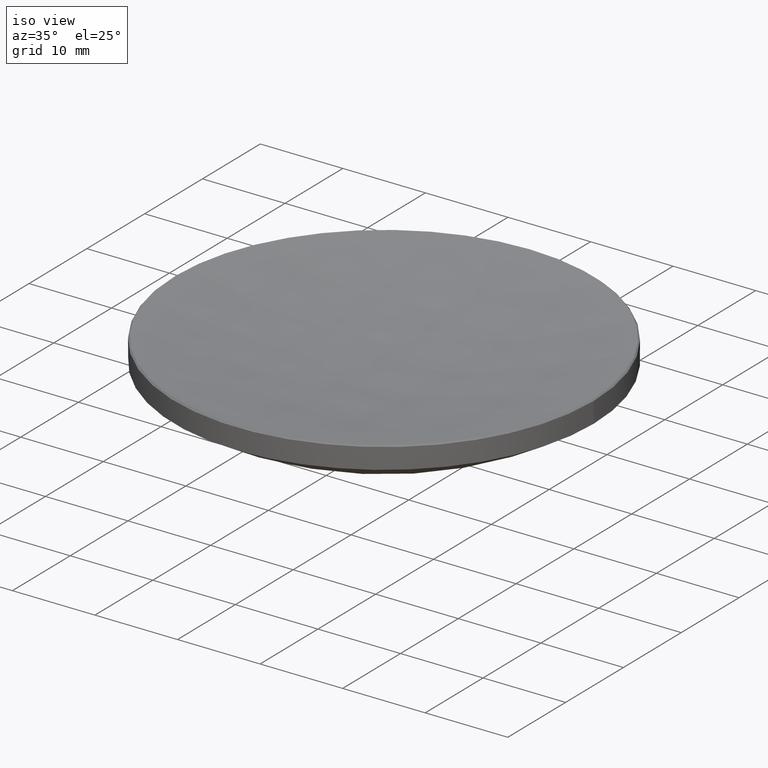
[diagram: clean part render]
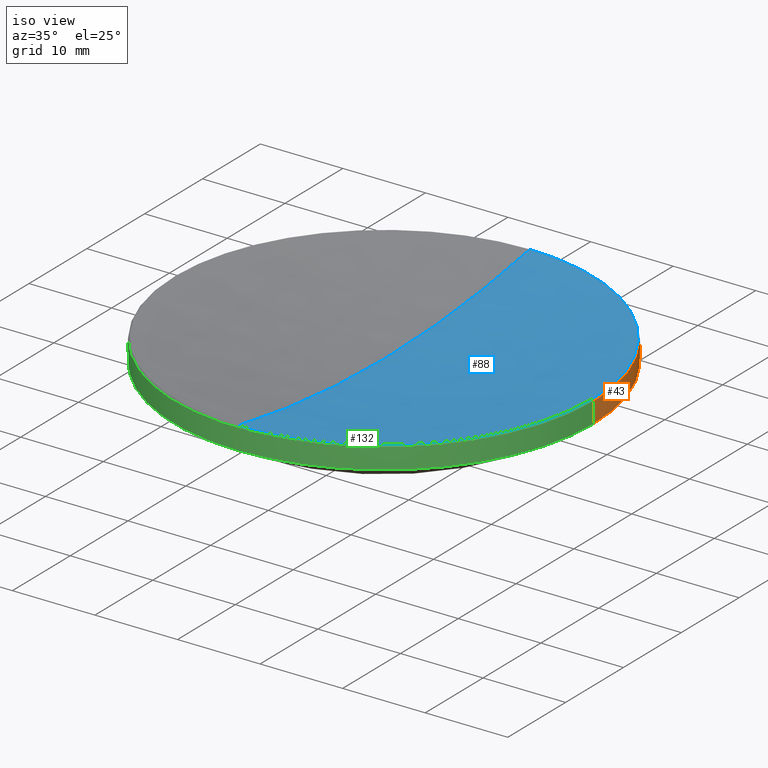
[diagram: same view with three faces highlighted in distinct colors, each labeled with its STEP entity id]
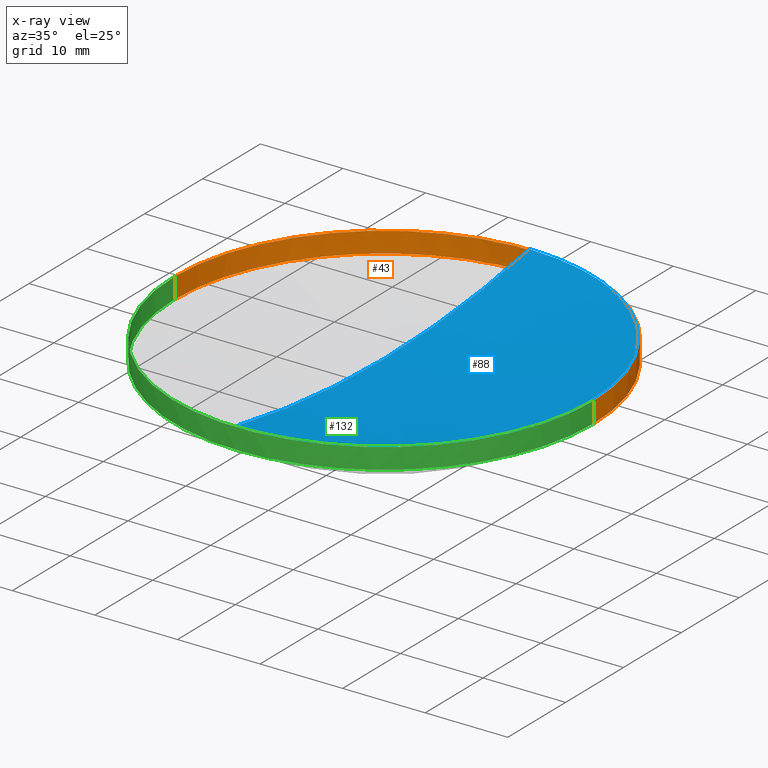
[diagram: x-ray of the same camera — body ghosted, the three highlighted faces saturated]
A machine part, iso view with three faces highlighted in distinct colors.
The next image is the same camera in x-ray (body ghosted, the three faces saturated) — at least one of them is partly hidden behind the body in this view.
Their STEP definitions:

[orange] entity #43 — the highlighted cylindrical surface (partial cylindrical patch) has radius 25.4 mm, axis along (-0, -0, -1).
#6 = VECTOR ( 'NONE', #245, 1000.000000000000000 ) ;
#9 = ORIENTED_EDGE ( 'NONE', *, *, #92, .F. ) ;
#16 = CIRCLE ( 'NONE', #257, 25.39999999999999503 ) ;
#20 = EDGE_CURVE ( 'NONE', #118, #208, #87, .T. ) ;
#25 = EDGE_CURVE ( 'NONE', #208, #144, #16, .T. ) ;
#36 = EDGE_CURVE ( 'NONE', #144, #116, #131, .T. ) ;
#39 = EDGE_LOOP ( 'NONE', ( #178, #81, #211, #54, #9 ) ) ;
#40 = CARTESIAN_POINT ( 'NONE',  ( 25.39999999999999503, 3.110602869834276471E-15, 15.00000000000000000 ) ) ;
#43 = ADVANCED_FACE ( 'NONE', ( #46 ), #127, .T. ) ;
#44 = DIRECTION ( 'NONE',  ( 1.000000000000000000, 0.000000000000000000, 0.000000000000000000 ) ) ;
#46 = FACE_OUTER_BOUND ( 'NONE', #39, .T. ) ;
#49 = CARTESIAN_POINT ( 'NONE',  ( 0.000000000000000000, 0.000000000000000000, 17.49999999999998934 ) ) ;
#50 = CARTESIAN_POINT ( 'NONE',  ( -25.39999999999999858, 0.000000000000000000, 20.00000000000000000 ) ) ;
#54 = ORIENTED_EDGE ( 'NONE', *, *, #36, .T. ) ;
#67 = DIRECTION ( 'NONE',  ( -1.000000000000000000, 0.000000000000000000, 0.000000000000000000 ) ) ;
#81 = ORIENTED_EDGE ( 'NONE', *, *, #20, .T. ) ;
#87 = LINE ( 'NONE', #212, #138 ) ;
#89 = AXIS2_PLACEMENT_3D ( 'NONE', #107, #259, #67 ) ;
#91 = DIRECTION ( 'NONE',  ( -0.000000000000000000, -0.000000000000000000, 1.000000000000000000 ) ) ;
#92 = EDGE_CURVE ( 'NONE', #202, #116, #220, .T. ) ;
#94 = AXIS2_PLACEMENT_3D ( 'NONE', #49, #129, #221 ) ;
#95 = CARTESIAN_POINT ( 'NONE',  ( 25.39999999999999858, 3.110602869834276865E-15, 17.49999999999998934 ) ) ;
#96 = CARTESIAN_POINT ( 'NONE',  ( 0.000000000000000000, 25.39999999999999858, 15.00000000000000000 ) ) ;
#107 = CARTESIAN_POINT ( 'NONE',  ( 0.000000000000000000, 0.000000000000000000, 20.00000000000000000 ) ) ;
#110 = CARTESIAN_POINT ( 'NONE',  ( -25.39999999999999503, 0.000000000000000000, 15.00000000000000000 ) ) ;
#116 = VERTEX_POINT ( 'NONE', #110 ) ;
#118 = VERTEX_POINT ( 'NONE', #95 ) ;
#126 = CARTESIAN_POINT ( 'NONE',  ( 0.000000000000000000, 0.000000000000000000, 15.00000000000000000 ) ) ;
#127 = CYLINDRICAL_SURFACE ( 'NONE', #89, 25.39999999999999858 ) ;
#129 = DIRECTION ( 'NONE',  ( 0.000000000000000000, 0.000000000000000000, -1.000000000000000000 ) ) ;
#131 = CIRCLE ( 'NONE', #170, 25.39999999999999503 ) ;
#138 = VECTOR ( 'NONE', #238, 1000.000000000000000 ) ;
#144 = VERTEX_POINT ( 'NONE', #96 ) ;
#159 = CARTESIAN_POINT ( 'NONE',  ( -25.39999999999999858, 0.000000000000000000, 17.49999999999998934 ) ) ;
#167 = DIRECTION ( 'NONE',  ( -0.000000000000000000, -0.000000000000000000, 1.000000000000000000 ) ) ;
#169 = DIRECTION ( 'NONE',  ( 1.000000000000000000, 0.000000000000000000, 0.000000000000000000 ) ) ;
#170 = AXIS2_PLACEMENT_3D ( 'NONE', #240, #167, #44 ) ;
#172 = EDGE_CURVE ( 'NONE', #202, #118, #182, .T. ) ;
#178 = ORIENTED_EDGE ( 'NONE', *, *, #172, .T. ) ;
#182 = CIRCLE ( 'NONE', #94, 25.39999999999999858 ) ;
#202 = VERTEX_POINT ( 'NONE', #159 ) ;
#208 = VERTEX_POINT ( 'NONE', #40 ) ;
#211 = ORIENTED_EDGE ( 'NONE', *, *, #25, .T. ) ;
#212 = CARTESIAN_POINT ( 'NONE',  ( 25.39999999999999858, 3.110602869834276865E-15, 20.00000000000000000 ) ) ;
#220 = LINE ( 'NONE', #50, #6 ) ;
#221 = DIRECTION ( 'NONE',  ( 1.000000000000000000, 0.000000000000000000, 0.000000000000000000 ) ) ;
#238 = DIRECTION ( 'NONE',  ( -0.000000000000000000, -0.000000000000000000, -1.000000000000000000 ) ) ;
#240 = CARTESIAN_POINT ( 'NONE',  ( 0.000000000000000000, 0.000000000000000000, 15.00000000000000000 ) ) ;
#245 = DIRECTION ( 'NONE',  ( -0.000000000000000000, -0.000000000000000000, -1.000000000000000000 ) ) ;
#257 = AXIS2_PLACEMENT_3D ( 'NONE', #126, #91, #169 ) ;
#259 = DIRECTION ( 'NONE',  ( -0.000000000000000000, -0.000000000000000000, -1.000000000000000000 ) ) ;

[blue] entity #88 — the highlighted spherical surface has radius 135.25 mm.
#2 = EDGE_CURVE ( 'NONE', #258, #99, #243, .T. ) ;
#10 = CIRCLE ( 'NONE', #280, 25.23201001315934988 ) ;
#19 = DIRECTION ( 'NONE',  ( 1.000000000000000000, 0.000000000000000000, 0.000000000000000000 ) ) ;
#21 = AXIS2_PLACEMENT_3D ( 'NONE', #53, #78, #98 ) ;
#24 = CARTESIAN_POINT ( 'NONE',  ( 0.000000000000000000, 0.000000000000000000, 17.66798998684060251 ) ) ;
#29 = CIRCLE ( 'NONE', #112, 25.23201001315934988 ) ;
#48 = SPHERICAL_SURFACE ( 'NONE', #217, 135.2499999999999716 ) ;
#53 = CARTESIAN_POINT ( 'NONE',  ( 0.000000000000000000, 0.000000000000000000, 150.5435263759585780 ) ) ;
#58 = CARTESIAN_POINT ( 'NONE',  ( 0.000000000000000000, 0.000000000000000000, 150.5435263759585780 ) ) ;
#63 = EDGE_CURVE ( 'NONE', #147, #137, #29, .T. ) ;
#64 = ORIENTED_EDGE ( 'NONE', *, *, #63, .T. ) ;
#78 = DIRECTION ( 'NONE',  ( -1.000000000000000000, 1.224646799147353207E-16, 0.000000000000000000 ) ) ;
#82 = CARTESIAN_POINT ( 'NONE',  ( 0.000000000000000000, 8.281673979233975438E-15, 15.29352637595859932 ) ) ;
#86 = ORIENTED_EDGE ( 'NONE', *, *, #204, .T. ) ;
#88 = ADVANCED_FACE ( 'NONE', ( #192 ), #48, .F. ) ;
#98 = DIRECTION ( 'NONE',  ( -1.224646799147353454E-16, -1.000000000000000000, 0.000000000000000000 ) ) ;
#99 = VERTEX_POINT ( 'NONE', #196 ) ;
#108 = DIRECTION ( 'NONE',  ( -0.000000000000000000, -0.000000000000000000, 1.000000000000000000 ) ) ;
#112 = AXIS2_PLACEMENT_3D ( 'NONE', #216, #108, #124 ) ;
#124 = DIRECTION ( 'NONE',  ( 1.000000000000000000, 0.000000000000000000, 0.000000000000000000 ) ) ;
#130 = CARTESIAN_POINT ( 'NONE',  ( 25.23201001315934988, 3.100316449850616276E-15, 17.66798998684060251 ) ) ;
#137 = VERTEX_POINT ( 'NONE', #130 ) ;
#147 = VERTEX_POINT ( 'NONE', #270 ) ;
#151 = AXIS2_PLACEMENT_3D ( 'NONE', #58, #19, #189 ) ;
#153 = CIRCLE ( 'NONE', #21, 135.2499999999999716 ) ;
#171 = DIRECTION ( 'NONE',  ( 0.000000000000000000, 1.000000000000000000, 0.000000000000000000 ) ) ;
#183 = EDGE_CURVE ( 'NONE', #137, #99, #10, .T. ) ;
#189 = DIRECTION ( 'NONE',  ( 0.000000000000000000, 0.000000000000000000, -1.000000000000000000 ) ) ;
#192 = FACE_OUTER_BOUND ( 'NONE', #249, .T. ) ;
#193 = DIRECTION ( 'NONE',  ( -1.000000000000000000, 0.000000000000000000, 0.000000000000000000 ) ) ;
#196 = CARTESIAN_POINT ( 'NONE',  ( 0.000000000000000000, 25.23201001315939607, 17.66798998684061672 ) ) ;
#204 = EDGE_CURVE ( 'NONE', #258, #147, #153, .T. ) ;
#207 = DIRECTION ( 'NONE',  ( -0.000000000000000000, -0.000000000000000000, 1.000000000000000000 ) ) ;
#216 = CARTESIAN_POINT ( 'NONE',  ( 0.000000000000000000, 0.000000000000000000, 17.66798998684060251 ) ) ;
#217 = AXIS2_PLACEMENT_3D ( 'NONE', #246, #193, #171 ) ;
#229 = ORIENTED_EDGE ( 'NONE', *, *, #183, .T. ) ;
#243 = CIRCLE ( 'NONE', #151, 135.2499999999999716 ) ;
#246 = CARTESIAN_POINT ( 'NONE',  ( 0.000000000000000000, 0.000000000000000000, 150.5435263759585780 ) ) ;
#249 = EDGE_LOOP ( 'NONE', ( #253, #86, #64, #229 ) ) ;
#253 = ORIENTED_EDGE ( 'NONE', *, *, #2, .F. ) ;
#258 = VERTEX_POINT ( 'NONE', #82 ) ;
#270 = CARTESIAN_POINT ( 'NONE',  ( -3.090030029866962391E-15, -25.23201001315939607, 17.66798998684061672 ) ) ;
#277 = DIRECTION ( 'NONE',  ( 1.000000000000000000, 0.000000000000000000, 0.000000000000000000 ) ) ;
#280 = AXIS2_PLACEMENT_3D ( 'NONE', #24, #207, #277 ) ;

[green] entity #132 — the highlighted cylindrical surface (partial cylindrical patch) has radius 25.4 mm, axis along (-0, -0, -1).
#4 = CARTESIAN_POINT ( 'NONE',  ( 0.000000000000000000, 0.000000000000000000, 20.00000000000000000 ) ) ;
#6 = VECTOR ( 'NONE', #245, 1000.000000000000000 ) ;
#14 = DIRECTION ( 'NONE',  ( 1.000000000000000000, 0.000000000000000000, 0.000000000000000000 ) ) ;
#20 = EDGE_CURVE ( 'NONE', #118, #208, #87, .T. ) ;
#26 = CYLINDRICAL_SURFACE ( 'NONE', #227, 25.39999999999999858 ) ;
#34 = VERTEX_POINT ( 'NONE', #236 ) ;
#38 = CIRCLE ( 'NONE', #177, 25.39999999999999503 ) ;
#40 = CARTESIAN_POINT ( 'NONE',  ( 25.39999999999999503, 3.110602869834276471E-15, 15.00000000000000000 ) ) ;
#47 = CIRCLE ( 'NONE', #156, 25.39999999999999503 ) ;
#50 = CARTESIAN_POINT ( 'NONE',  ( -25.39999999999999858, 0.000000000000000000, 20.00000000000000000 ) ) ;
#62 = AXIS2_PLACEMENT_3D ( 'NONE', #117, #231, #14 ) ;
#72 = DIRECTION ( 'NONE',  ( -0.000000000000000000, -0.000000000000000000, -1.000000000000000000 ) ) ;
#73 = CIRCLE ( 'NONE', #62, 25.39999999999999858 ) ;
#79 = EDGE_LOOP ( 'NONE', ( #272, #230, #276, #140, #121 ) ) ;
#87 = LINE ( 'NONE', #212, #138 ) ;
#92 = EDGE_CURVE ( 'NONE', #202, #116, #220, .T. ) ;
#95 = CARTESIAN_POINT ( 'NONE',  ( 25.39999999999999858, 3.110602869834276865E-15, 17.49999999999998934 ) ) ;
#110 = CARTESIAN_POINT ( 'NONE',  ( -25.39999999999999503, 0.000000000000000000, 15.00000000000000000 ) ) ;
#116 = VERTEX_POINT ( 'NONE', #110 ) ;
#117 = CARTESIAN_POINT ( 'NONE',  ( 0.000000000000000000, 0.000000000000000000, 17.49999999999998934 ) ) ;
#118 = VERTEX_POINT ( 'NONE', #95 ) ;
#121 = ORIENTED_EDGE ( 'NONE', *, *, #210, .T. ) ;
#122 = CARTESIAN_POINT ( 'NONE',  ( 0.000000000000000000, 0.000000000000000000, 15.00000000000000000 ) ) ;
#132 = ADVANCED_FACE ( 'NONE', ( #134 ), #26, .T. ) ;
#134 = FACE_OUTER_BOUND ( 'NONE', #79, .T. ) ;
#138 = VECTOR ( 'NONE', #238, 1000.000000000000000 ) ;
#140 = ORIENTED_EDGE ( 'NONE', *, *, #239, .T. ) ;
#156 = AXIS2_PLACEMENT_3D ( 'NONE', #179, #248, #228 ) ;
#159 = CARTESIAN_POINT ( 'NONE',  ( -25.39999999999999858, 0.000000000000000000, 17.49999999999998934 ) ) ;
#176 = DIRECTION ( 'NONE',  ( -1.000000000000000000, 0.000000000000000000, 0.000000000000000000 ) ) ;
#177 = AXIS2_PLACEMENT_3D ( 'NONE', #122, #201, #186 ) ;
#179 = CARTESIAN_POINT ( 'NONE',  ( 0.000000000000000000, 0.000000000000000000, 15.00000000000000000 ) ) ;
#186 = DIRECTION ( 'NONE',  ( 1.000000000000000000, 0.000000000000000000, 0.000000000000000000 ) ) ;
#201 = DIRECTION ( 'NONE',  ( -0.000000000000000000, -0.000000000000000000, 1.000000000000000000 ) ) ;
#202 = VERTEX_POINT ( 'NONE', #159 ) ;
#208 = VERTEX_POINT ( 'NONE', #40 ) ;
#210 = EDGE_CURVE ( 'NONE', #34, #208, #47, .T. ) ;
#212 = CARTESIAN_POINT ( 'NONE',  ( 25.39999999999999858, 3.110602869834276865E-15, 20.00000000000000000 ) ) ;
#220 = LINE ( 'NONE', #50, #6 ) ;
#227 = AXIS2_PLACEMENT_3D ( 'NONE', #4, #72, #176 ) ;
#228 = DIRECTION ( 'NONE',  ( 1.000000000000000000, 0.000000000000000000, 0.000000000000000000 ) ) ;
#230 = ORIENTED_EDGE ( 'NONE', *, *, #262, .T. ) ;
#231 = DIRECTION ( 'NONE',  ( 0.000000000000000000, 0.000000000000000000, -1.000000000000000000 ) ) ;
#236 = CARTESIAN_POINT ( 'NONE',  ( -3.110602869834276471E-15, -25.39999999999999858, 15.00000000000000000 ) ) ;
#238 = DIRECTION ( 'NONE',  ( -0.000000000000000000, -0.000000000000000000, -1.000000000000000000 ) ) ;
#239 = EDGE_CURVE ( 'NONE', #116, #34, #38, .T. ) ;
#245 = DIRECTION ( 'NONE',  ( -0.000000000000000000, -0.000000000000000000, -1.000000000000000000 ) ) ;
#248 = DIRECTION ( 'NONE',  ( -0.000000000000000000, -0.000000000000000000, 1.000000000000000000 ) ) ;
#262 = EDGE_CURVE ( 'NONE', #118, #202, #73, .T. ) ;
#272 = ORIENTED_EDGE ( 'NONE', *, *, #20, .F. ) ;
#276 = ORIENTED_EDGE ( 'NONE', *, *, #92, .T. ) ;